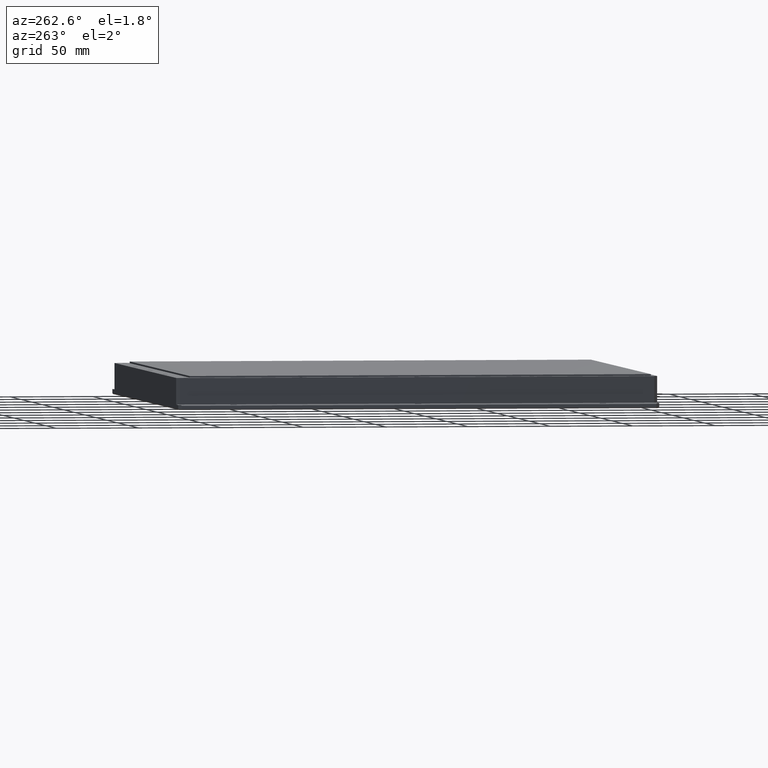
[diagram: clean part render]
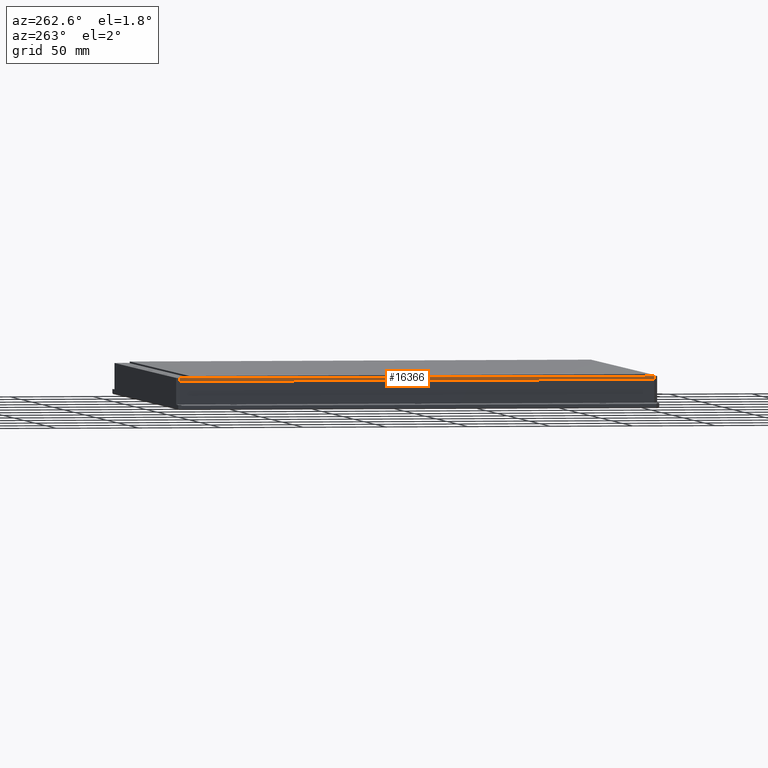
[diagram: same view with one face highlighted and labeled with its STEP entity id]
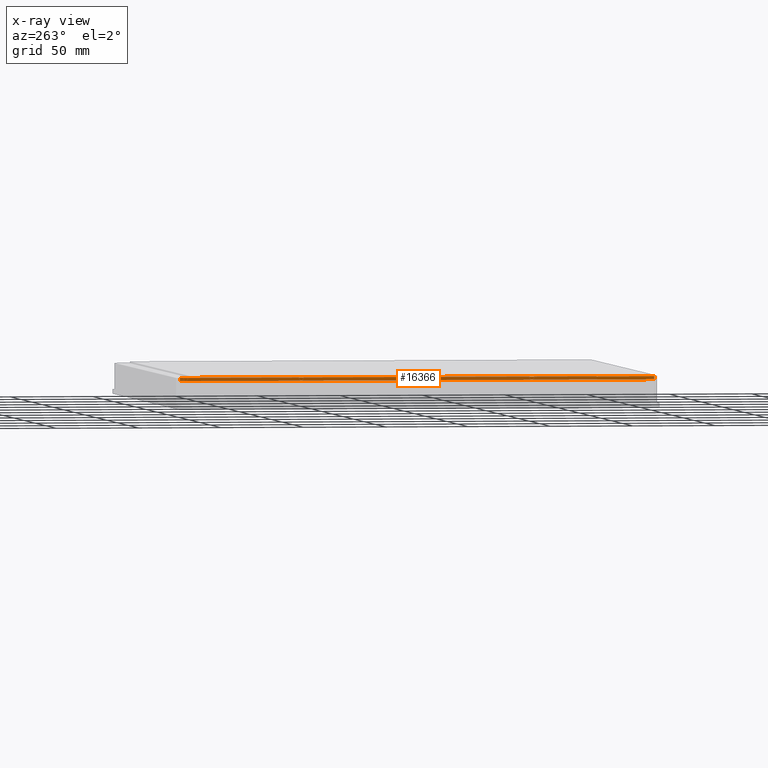
[diagram: x-ray of the same camera — body ghosted, the highlighted face saturated]
A machine part, auxiliary view. The second image highlights one B-rep face of the part: STEP entity #16366.
The next image is the same camera in x-ray: the body ghosted, the highlighted face saturated — about 0% of this face is hidden behind the body in this view.
In plain terms, the highlighted planar face has unit normal (1, 0, 0).
Its self-contained STEP definition (entity closure, byte-faithful):
#45 = VERTEX_POINT ( 'NONE', #23676 ) ;
#93 = DIRECTION ( 'NONE',  ( 0.0000000000000000000, 0.0000000000000000000, -1.000000000000000000 ) ) ;
#1273 = VECTOR ( 'NONE', #3932, 1000.000000000000000 ) ;
#1623 = EDGE_CURVE ( 'NONE', #2631, #2321, #15743, .T. ) ;
#1702 = DIRECTION ( 'NONE',  ( 1.000000000000000000, 0.0000000000000000000, 0.0000000000000000000 ) ) ;
#2321 = VERTEX_POINT ( 'NONE', #4135 ) ;
#2631 = VERTEX_POINT ( 'NONE', #18635 ) ;
#2740 = VECTOR ( 'NONE', #23077, 1000.000000000000000 ) ;
#3932 = DIRECTION ( 'NONE',  ( -0.0000000000000000000, -1.000000000000000000, -0.0000000000000000000 ) ) ;
#4062 = FACE_OUTER_BOUND ( 'NONE', #15837, .T. ) ;
#4135 = CARTESIAN_POINT ( 'NONE',  ( -113.0806771263418700, -130.7301954307733600, 6.999999999971805700 ) ) ;
#4184 = AXIS2_PLACEMENT_3D ( 'NONE', #5468, #1702, #12700 ) ;
#5187 = CARTESIAN_POINT ( 'NONE',  ( -113.0806771263418400, 157.2698045692265800, 8.999999999971805700 ) ) ;
#5468 = CARTESIAN_POINT ( 'NONE',  ( -113.0806771263418400, 159.2698045692265800, 8.999999999971805700 ) ) ;
#5540 = CARTESIAN_POINT ( 'NONE',  ( -113.0806771263418400, -130.7301954307733100, 8.999999999971805700 ) ) ;
#7163 = EDGE_CURVE ( 'NONE', #45, #13742, #15695, .T. ) ;
#9839 = LINE ( 'NONE', #5540, #23395 ) ;
#10697 = DIRECTION ( 'NONE',  ( -0.0000000000000000000, -0.0000000000000000000, 1.000000000000000000 ) ) ;
#10895 = ORIENTED_EDGE ( 'NONE', *, *, #7163, .F. ) ;
#12266 = LINE ( 'NONE', #5187, #14004 ) ;
#12700 = DIRECTION ( 'NONE',  ( 0.0000000000000000000, 0.0000000000000000000, -1.000000000000000000 ) ) ;
#13085 = ORIENTED_EDGE ( 'NONE', *, *, #21454, .F. ) ;
#13742 = VERTEX_POINT ( 'NONE', #17795 ) ;
#14004 = VECTOR ( 'NONE', #10697, 1000.000000000000000 ) ;
#14939 = CARTESIAN_POINT ( 'NONE',  ( -113.0806771263418400, 159.2698045692265800, 8.999999999971805700 ) ) ;
#15695 = LINE ( 'NONE', #14939, #1273 ) ;
#15743 = LINE ( 'NONE', #17552, #2740 ) ;
#15837 = EDGE_LOOP ( 'NONE', ( #20926, #23568, #13085, #10895 ) ) ;
#16366 = ADVANCED_FACE ( 'NONE', ( #4062 ), #16571, .F. ) ;
#16571 = PLANE ( 'NONE',  #4184 ) ;
#17552 = CARTESIAN_POINT ( 'NONE',  ( -113.0806771263418400, -132.7301954307733900, 6.999999999971805700 ) ) ;
#17795 = CARTESIAN_POINT ( 'NONE',  ( -113.0806771263418400, -130.7301954307733600, 8.999999999971805700 ) ) ;
#18635 = CARTESIAN_POINT ( 'NONE',  ( -113.0806771263418100, 157.2698045692265800, 6.999999999971804800 ) ) ;
#20336 = EDGE_CURVE ( 'NONE', #2631, #45, #12266, .T. ) ;
#20926 = ORIENTED_EDGE ( 'NONE', *, *, #20336, .F. ) ;
#21454 = EDGE_CURVE ( 'NONE', #13742, #2321, #9839, .T. ) ;
#23077 = DIRECTION ( 'NONE',  ( -0.0000000000000000000, -1.000000000000000000, -0.0000000000000000000 ) ) ;
#23395 = VECTOR ( 'NONE', #93, 1000.000000000000000 ) ;
#23568 = ORIENTED_EDGE ( 'NONE', *, *, #1623, .T. ) ;
#23676 = CARTESIAN_POINT ( 'NONE',  ( -113.0806771263418100, 157.2698045692265800, 8.999999999971805700 ) ) ;